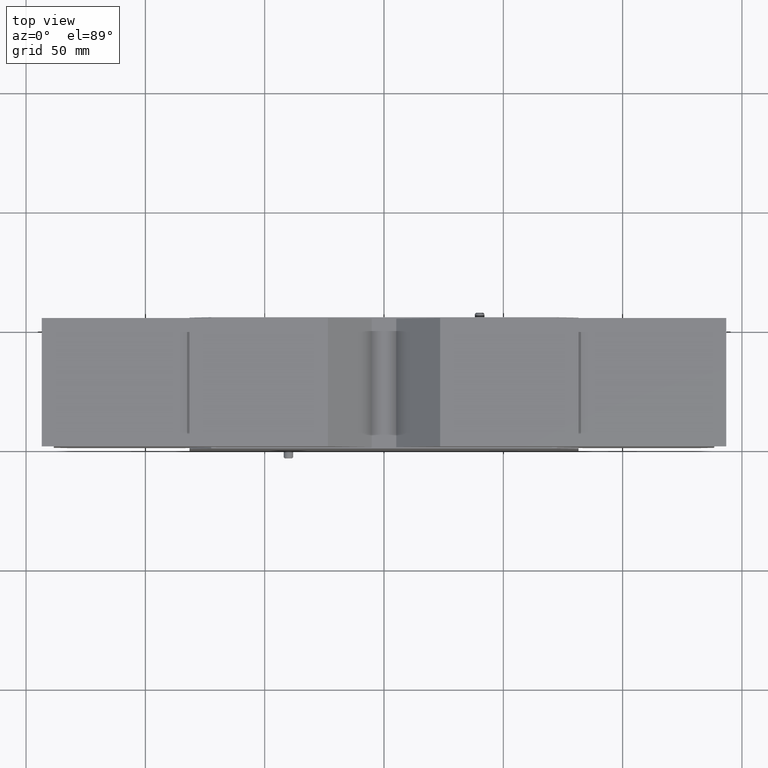
[diagram: clean part render]
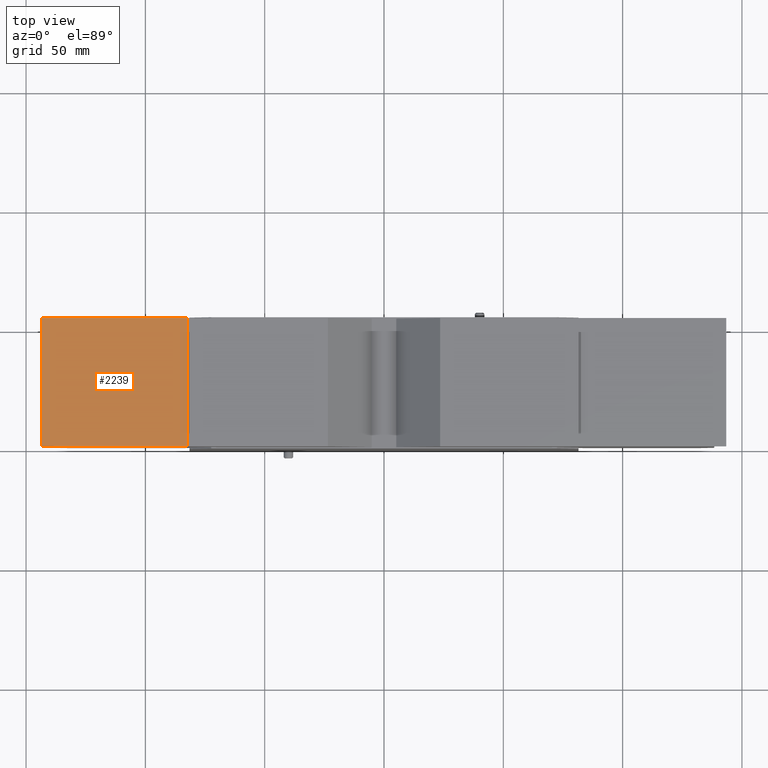
[diagram: same view with one face highlighted and labeled with its STEP entity id]
A machine part, top view. The second image highlights one B-rep face of the part: STEP entity #2239.
In plain terms, the highlighted planar face has unit normal (-0, 0, 1).
Its self-contained STEP definition (entity closure, byte-faithful):
#649=ORIENTED_EDGE('',*,*,#985,.F.);
#650=ORIENTED_EDGE('',*,*,#984,.F.);
#651=ORIENTED_EDGE('',*,*,#986,.T.);
#652=ORIENTED_EDGE('',*,*,#987,.T.);
#984=EDGE_CURVE('',#1194,#1193,#1426,.T.);
#985=EDGE_CURVE('',#1193,#1195,#1427,.T.);
#986=EDGE_CURVE('',#1194,#1196,#1428,.T.);
#987=EDGE_CURVE('',#1196,#1195,#1429,.T.);
#1193=VERTEX_POINT('',#3681);
#1194=VERTEX_POINT('',#3683);
#1195=VERTEX_POINT('',#3687);
#1196=VERTEX_POINT('',#3689);
#1426=LINE('',#3684,#1662);
#1427=LINE('',#3686,#1663);
#1428=LINE('',#3688,#1664);
#1429=LINE('',#3690,#1665);
#1662=VECTOR('',#3050,1000.);
#1663=VECTOR('',#3053,1000.);
#1664=VECTOR('',#3054,1000.);
#1665=VECTOR('',#3055,1000.);
#1838=EDGE_LOOP('',(#649,#650,#651,#652));
#2010=FACE_BOUND('',#1838,.T.);
#2109=PLANE('',#2452);
#2239=ADVANCED_FACE('',(#2010),#2109,.T.);
#2452=AXIS2_PLACEMENT_3D('',#3685,#3051,#3052);
#3050=DIRECTION('',(0.,-1.,0.));
#3051=DIRECTION('',(2.05090460214007E-15,0.,1.));
#3052=DIRECTION('',(1.,0.,-2.05090460214007E-15));
#3053=DIRECTION('',(-1.,0.,2.05090460214007E-15));
#3054=DIRECTION('',(-1.,0.,2.05090460214007E-15));
#3055=DIRECTION('',(0.,-1.,0.));
#3681=CARTESIAN_POINT('',(143.4,0.6,56.4099999999995));
#3683=CARTESIAN_POINT('',(143.4,54.4,56.4099999999995));
#3684=CARTESIAN_POINT('',(143.4,54.4,56.4099999999995));
#3685=CARTESIAN_POINT('',(143.4,54.4,56.4099999999995));
#3686=CARTESIAN_POINT('',(143.4,0.6,56.4099999999995));
#3687=CARTESIAN_POINT('',(82.5000000000001,0.6,56.4099999999996));
#3688=CARTESIAN_POINT('',(143.4,54.4,56.4099999999995));
#3689=CARTESIAN_POINT('',(82.5000000000001,54.4,56.4099999999996));
#3690=CARTESIAN_POINT('',(82.5000000000001,54.4,56.4099999999996));